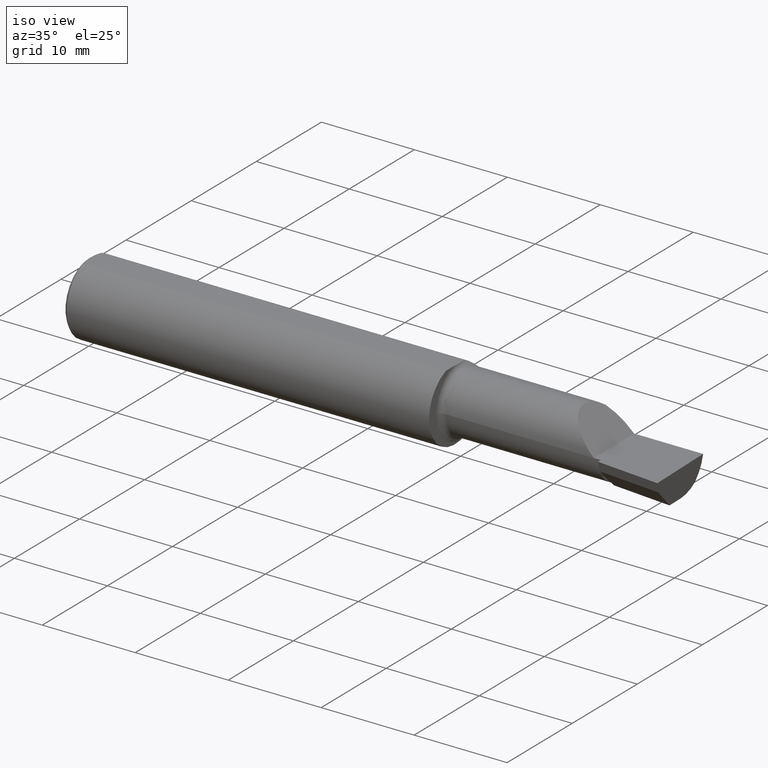
[diagram: clean part render]
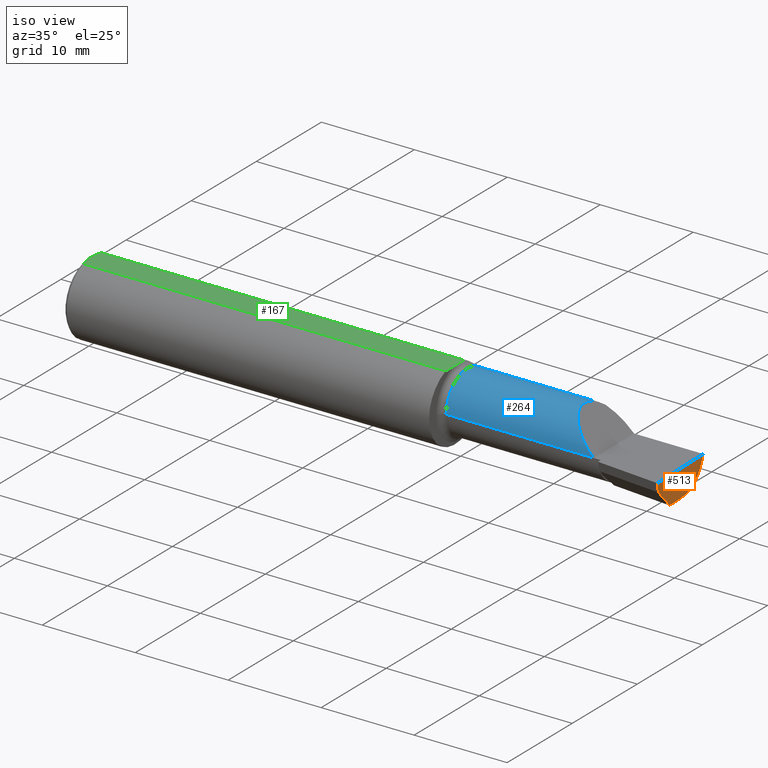
[diagram: same view with three faces highlighted in distinct colors, each labeled with its STEP entity id]
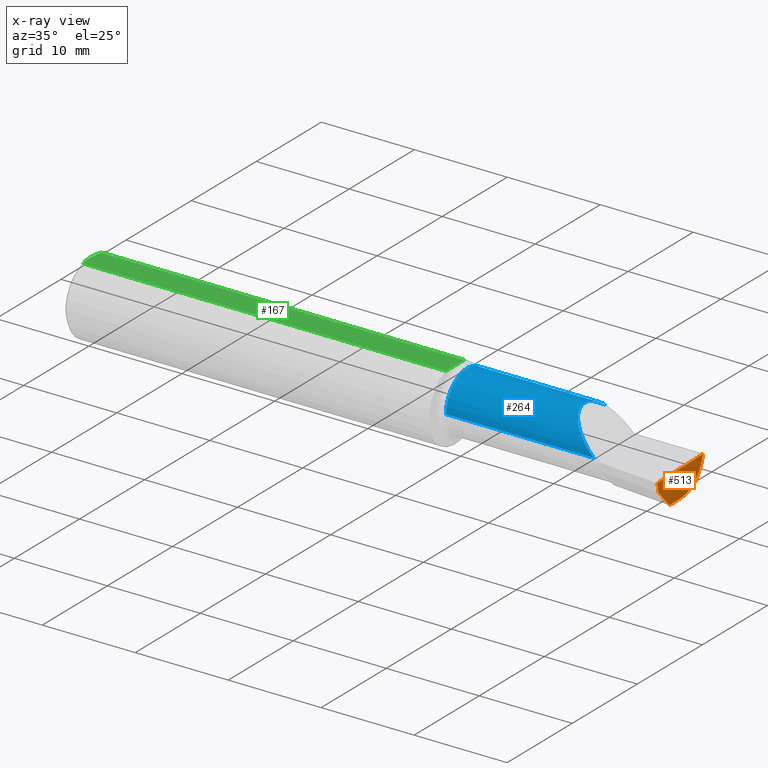
[diagram: x-ray of the same camera — body ghosted, the three highlighted faces saturated]
A machine part, iso view with three faces highlighted in distinct colors.
The next image is the same camera in x-ray (body ghosted, the three faces saturated) — at least one of them is partly hidden behind the body in this view.
Their STEP definitions:

[orange] entity #513 — the highlighted planar face has unit normal (-0.9927, -0.0266, 0.1175).
#20 = DIRECTION ( 'NONE',  ( 0.02677973311239121093, -0.9996413586354002678, 2.361772610768839557E-16 ) ) ;
#25 = VERTEX_POINT ( 'NONE', #586 ) ;
#78 = CARTESIAN_POINT ( 'NONE',  ( 2.494657007549286654, -0.1180817311663150265, -0.04199999999999994016 ) ) ;
#85 = ORIENTED_EDGE ( 'NONE', *, *, #565, .F. ) ;
#98 = VECTOR ( 'NONE', #396, 39.37007874015748854 ) ;
#146 = VECTOR ( 'NONE', #175, 39.37007874015748854 ) ;
#148 = VERTEX_POINT ( 'NONE', #195 ) ;
#161 = CARTESIAN_POINT ( 'NONE',  ( 2.480278310775617889, 0.03899999999999996525, -0.1279000000000000137 ) ) ;
#175 = DIRECTION ( 'NONE',  ( 0.1199690778467074614, -0.3102690083707258517, 0.9430485474275739355 ) ) ;
#192 =( BOUNDED_CURVE ( )  B_SPLINE_CURVE ( 3, ( #392, #193, #232, #288 ),
 .UNSPECIFIED., .F., .T. ) 
 B_SPLINE_CURVE_WITH_KNOTS ( ( 4, 4 ),
 ( 4.934903206476692006, 5.606733633295030828 ),
 .UNSPECIFIED. ) 
 CURVE ( )  GEOMETRIC_REPRESENTATION_ITEM ( )  RATIONAL_B_SPLINE_CURVE ( ( 1.000000000000000000, 0.9627393467969929119, 0.9627393467969929119, 1.000000000000000000 ) ) 
 REPRESENTATION_ITEM ( '' )  );
#193 = CARTESIAN_POINT ( 'NONE',  ( 2.488065891762460069, 0.1561000000000000443, -0.03563149886036989789 ) ) ;
#194 = ORIENTED_EDGE ( 'NONE', *, *, #429, .F. ) ;
#195 = CARTESIAN_POINT ( 'NONE',  ( 2.500000000000000000, -0.1319000000000001560, 8.537024980200822558E-17 ) ) ;
#207 = VERTEX_POINT ( 'NONE', #78 ) ;
#211 = ORIENTED_EDGE ( 'NONE', *, *, #416, .F. ) ;
#216 = CARTESIAN_POINT ( 'NONE',  ( 2.481689713451043833, 0.1221769230769229331, -0.09715971113303932538 ) ) ;
#232 = CARTESIAN_POINT ( 'NONE',  ( 2.484397555013683423, 0.1443546689866653243, -0.06927151833753060484 ) ) ;
#237 = PLANE ( 'NONE',  #473 ) ;
#248 = ORIENTED_EDGE ( 'NONE', *, *, #419, .F. ) ;
#270 = CARTESIAN_POINT ( 'NONE',  ( 2.482182401943660466, -0.03207644703550106141, -0.1278999999999999859 ) ) ;
#271 = VERTEX_POINT ( 'NONE', #270 ) ;
#282 = FACE_OUTER_BOUND ( 'NONE', #637, .T. ) ;
#288 = CARTESIAN_POINT ( 'NONE',  ( 2.481689713451043833, 0.1221769230769229331, -0.09715971113303932538 ) ) ;
#307 = CARTESIAN_POINT ( 'NONE',  ( 2.503161552210378282, -0.2499153041001321018, 6.798346390156494500E-17 ) ) ;
#333 = CARTESIAN_POINT ( 'NONE',  ( 2.480292454266014079, 0.03847204783946026746, -0.1279000000000000137 ) ) ;
#341 = LINE ( 'NONE', #617, #146 ) ;
#356 = CARTESIAN_POINT ( 'NONE',  ( 2.480278310775617889, 0.03899999999999996525, -0.1279000000000000137 ) ) ;
#383 = ORIENTED_EDGE ( 'NONE', *, *, #606, .F. ) ;
#392 = CARTESIAN_POINT ( 'NONE',  ( 2.492284669827090404, 0.1560999999999998500, 6.904452464043948710E-17 ) ) ;
#396 = DIRECTION ( 'NONE',  ( 0.1020886612874973703, -0.7038430390621320809, 0.7029814233678642887 ) ) ;
#416 = EDGE_CURVE ( 'NONE', #632, #271, #672, .T. ) ;
#419 = EDGE_CURVE ( 'NONE', #207, #148, #341, .T. ) ;
#429 = EDGE_CURVE ( 'NONE', #271, #207, #682, .T. ) ;
#456 = CARTESIAN_POINT ( 'NONE',  ( 2.447263151235541834, -0.1332809629855526701, -0.4457241239726061344 ) ) ;
#461 = VECTOR ( 'NONE', #20, 39.37007874015748143 ) ;
#473 = AXIS2_PLACEMENT_3D ( 'NONE', #456, #676, #623 ) ;
#475 = EDGE_CURVE ( 'NONE', #25, #698, #192, .T. ) ;
#485 = LINE ( 'NONE', #307, #653 ) ;
#508 = CARTESIAN_POINT ( 'NONE',  ( 2.481689713451043833, 0.1221769230769229331, -0.09715971113303932538 ) ) ;
#513 = ADVANCED_FACE ( 'NONE', ( #282 ), #237, .F. ) ;
#531 = CARTESIAN_POINT ( 'NONE',  ( 2.479452310584073782, 0.06983316589608457026, -0.1279000000000000137 ) ) ;
#539 = CARTESIAN_POINT ( 'NONE',  ( 2.479943065675275005, 0.09875439382140567546, -0.1172113754642092748 ) ) ;
#564 = CARTESIAN_POINT ( 'NONE',  ( 2.489852269752854230, -0.08495580699522395363, -0.07508537277742946547 ) ) ;
#565 = EDGE_CURVE ( 'NONE', #148, #25, #485, .T. ) ;
#577 =( BOUNDED_CURVE ( )  B_SPLINE_CURVE ( 3, ( #216, #539, #531, #356 ),
 .UNSPECIFIED., .F., .T. ) 
 B_SPLINE_CURVE_WITH_KNOTS ( ( 4, 4 ),
 ( 5.797683689972068954, 6.505699533271590340 ),
 .UNSPECIFIED. ) 
 CURVE ( )  GEOMETRIC_REPRESENTATION_ITEM ( )  RATIONAL_B_SPLINE_CURVE ( ( 1.000000000000000000, 0.9586605761426441052, 0.9586605761426441052, 1.000000000000000000 ) ) 
 REPRESENTATION_ITEM ( '' )  );
#586 = CARTESIAN_POINT ( 'NONE',  ( 2.492284669827090404, 0.1560999999999998500, 6.904452464043948710E-17 ) ) ;
#606 = EDGE_CURVE ( 'NONE', #698, #632, #577, .T. ) ;
#615 = ORIENTED_EDGE ( 'NONE', *, *, #475, .F. ) ;
#617 = CARTESIAN_POINT ( 'NONE',  ( 2.489676096502775771, -0.1051998922881460657, -0.08115376371634881736 ) ) ;
#623 = DIRECTION ( 'NONE',  ( 0.1175789623991730093, 0.000000000000000000, 0.9930635365378863710 ) ) ;
#632 = VERTEX_POINT ( 'NONE', #161 ) ;
#637 = EDGE_LOOP ( 'NONE', ( #85, #248, #194, #211, #383, #615 ) ) ;
#640 = DIRECTION ( 'NONE',  ( -0.02677973311239118664, 0.9996413586354002678, 2.612414329932813452E-18 ) ) ;
#653 = VECTOR ( 'NONE', #640, 39.37007874015748854 ) ;
#672 = LINE ( 'NONE', #333, #461 ) ;
#676 = DIRECTION ( 'NONE',  ( -0.9927123040216839778, -0.02659410830638095011, 0.1175373763844856645 ) ) ;
#682 = LINE ( 'NONE', #564, #98 ) ;
#698 = VERTEX_POINT ( 'NONE', #508 ) ;

[blue] entity #264 — the highlighted cylindrical surface (partial cylindrical patch) has radius 3.2487 mm, axis along (-1, 0, -0).
#9 = LINE ( 'NONE', #604, #90 ) ;
#11 = VERTEX_POINT ( 'NONE', #381 ) ;
#14 = DIRECTION ( 'NONE',  ( -1.000000000000000000, 6.829619984160658046E-18, -0.000000000000000000 ) ) ;
#40 = VERTEX_POINT ( 'NONE', #656 ) ;
#41 = EDGE_CURVE ( 'NONE', #650, #40, #9, .T. ) ;
#42 = DIRECTION ( 'NONE',  ( 0.000000000000000000, -1.000000000000000000, 0.000000000000000000 ) ) ;
#56 = DIRECTION ( 'NONE',  ( -1.000000000000000000, 6.829619984160658046E-18, -0.000000000000000000 ) ) ;
#90 = VECTOR ( 'NONE', #107, 39.37007874015748143 ) ;
#107 = DIRECTION ( 'NONE',  ( 1.000000000000000000, -6.829619984160658046E-18, 0.000000000000000000 ) ) ;
#153 = CARTESIAN_POINT ( 'NONE',  ( 2.020546539569985978, 0.02604885517094871969, 0.1794534604300119796 ) ) ;
#202 = CARTESIAN_POINT ( 'NONE',  ( 2.200000000000000178, -0.08890000000000010394, 9.797174393178826150E-17 ) ) ;
#255 =( BOUNDED_CURVE ( )  B_SPLINE_CURVE ( 3, ( #428, #153, #695, #202 ),
 .UNSPECIFIED., .F., .T. ) 
 B_SPLINE_CURVE_WITH_KNOTS ( ( 4, 4 ),
 ( 5.575169463880055076, 7.853981633974482790 ),
 .UNSPECIFIED. ) 
 CURVE ( )  GEOMETRIC_REPRESENTATION_ITEM ( )  RATIONAL_B_SPLINE_CURVE ( ( 1.000000000000000000, 0.6120893875309916243, 0.6120893875309916243, 1.000000000000000000 ) ) 
 REPRESENTATION_ITEM ( '' )  );
#263 = VECTOR ( 'NONE', #14, 39.37007874015748143 ) ;
#264 = ADVANCED_FACE ( 'NONE', ( #432 ), #273, .T. ) ;
#265 = CARTESIAN_POINT ( 'NONE',  ( 1.574999999999999956, -0.08890000000000007618, 0.000000000000000000 ) ) ;
#273 = CYLINDRICAL_SURFACE ( 'NONE', #556, 0.1279000000000000137 ) ;
#326 = CARTESIAN_POINT ( 'NONE',  ( -8.735083959741483980E-19, -0.08890000000000002067, 0.000000000000000000 ) ) ;
#337 = DIRECTION ( 'NONE',  ( -1.000000000000000000, 6.829619984160658046E-18, -0.000000000000000000 ) ) ;
#359 = ORIENTED_EDGE ( 'NONE', *, *, #41, .F. ) ;
#381 = CARTESIAN_POINT ( 'NONE',  ( 2.200000000000000178, -0.08890000000000010394, 9.797174393178826150E-17 ) ) ;
#428 = CARTESIAN_POINT ( 'NONE',  ( 2.102840288866960616, 0.1221769230769238490, 0.09715971113303838169 ) ) ;
#432 = FACE_OUTER_BOUND ( 'NONE', #519, .T. ) ;
#442 = CARTESIAN_POINT ( 'NONE',  ( 0.000000000000000000, 0.03899999999999999994, 0.000000000000000000 ) ) ;
#454 = ORIENTED_EDGE ( 'NONE', *, *, #671, .F. ) ;
#465 = CARTESIAN_POINT ( 'NONE',  ( 1.574999999999999956, 0.03899999999999998607, 0.000000000000000000 ) ) ;
#476 = CARTESIAN_POINT ( 'NONE',  ( 1.574999999999999956, 0.1221769230769225584, 0.09715971113303970008 ) ) ;
#519 = EDGE_LOOP ( 'NONE', ( #454, #652, #359, #523 ) ) ;
#520 = EDGE_CURVE ( 'NONE', #618, #650, #592, .T. ) ;
#523 = ORIENTED_EDGE ( 'NONE', *, *, #520, .F. ) ;
#548 = AXIS2_PLACEMENT_3D ( 'NONE', #465, #337, #42 ) ;
#556 = AXIS2_PLACEMENT_3D ( 'NONE', #442, #56, #657 ) ;
#592 = CIRCLE ( 'NONE', #548, 0.1279000000000000414 ) ;
#604 = CARTESIAN_POINT ( 'NONE',  ( 1.902500000000000080, 0.1221769230769229331, 0.09715971113303932538 ) ) ;
#618 = VERTEX_POINT ( 'NONE', #265 ) ;
#646 = EDGE_CURVE ( 'NONE', #40, #11, #255, .T. ) ;
#650 = VERTEX_POINT ( 'NONE', #476 ) ;
#652 = ORIENTED_EDGE ( 'NONE', *, *, #646, .F. ) ;
#656 = CARTESIAN_POINT ( 'NONE',  ( 2.102840288866960616, 0.1221769230769238490, 0.09715971113303838169 ) ) ;
#657 = DIRECTION ( 'NONE',  ( -6.829619984160658816E-18, -1.000000000000000000, 0.000000000000000000 ) ) ;
#670 = LINE ( 'NONE', #326, #263 ) ;
#671 = EDGE_CURVE ( 'NONE', #11, #618, #670, .T. ) ;
#695 = CARTESIAN_POINT ( 'NONE',  ( 2.073458044061706307, -0.08890000000000002067, 0.1265419559382931769 ) ) ;

[green] entity #167 — the highlighted planar face has unit normal (0, -0, -1).
#8 = B_SPLINE_CURVE_WITH_KNOTS ( 'NONE', 3,
 ( #557, #561, #76, #68, #405, #346 ),
 .UNSPECIFIED., .F., .F.,
 ( 4, 2, 4 ),
 ( 0.002884734412378666280, 0.003593604306281239329, 0.004302474200183812811 ),
 .UNSPECIFIED. ) ;
#48 = LINE ( 'NONE', #535, #135 ) ;
#55 = CARTESIAN_POINT ( 'NONE',  ( 0.01499999999999999944, -0.05497272050753897882, 0.1461000000000000076 ) ) ;
#66 = VECTOR ( 'NONE', #453, 39.37007874015748143 ) ;
#68 = CARTESIAN_POINT ( 'NONE',  ( 0.009371209226504017067, 0.03711161584255317364, 0.1460999999999999799 ) ) ;
#72 = FACE_OUTER_BOUND ( 'NONE', #462, .T. ) ;
#76 = CARTESIAN_POINT ( 'NONE',  ( 0.005929349363809115203, 0.01879672308419498561, 0.1461000000000000076 ) ) ;
#80 = AXIS2_PLACEMENT_3D ( 'NONE', #636, #411, #138 ) ;
#82 = VERTEX_POINT ( 'NONE', #110 ) ;
#84 = EDGE_CURVE ( 'NONE', #184, #176, #620, .T. ) ;
#104 = EDGE_CURVE ( 'NONE', #82, #402, #48, .T. ) ;
#110 = CARTESIAN_POINT ( 'NONE',  ( 1.550000000000000044, -0.05497272050753900657, 0.1461000000000000076 ) ) ;
#118 = ORIENTED_EDGE ( 'NONE', *, *, #469, .F. ) ;
#128 = CARTESIAN_POINT ( 'NONE',  ( 0.000000000000000000, 0.05497272050753903433, 0.1460999999999999521 ) ) ;
#135 = VECTOR ( 'NONE', #599, 39.37007874015748143 ) ;
#138 = DIRECTION ( 'NONE',  ( 0.000000000000000000, 1.000000000000000000, -1.656870447394628111E-16 ) ) ;
#167 = ADVANCED_FACE ( 'NONE', ( #72 ), #414, .F. ) ;
#176 = VERTEX_POINT ( 'NONE', #293 ) ;
#182 = EDGE_CURVE ( 'NONE', #402, #443, #579, .T. ) ;
#184 = VERTEX_POINT ( 'NONE', #678 ) ;
#214 = CARTESIAN_POINT ( 'NONE',  ( 0.005000000000000139749, -0.009384304010803560733, 0.1460999999999999799 ) ) ;
#215 = CARTESIAN_POINT ( 'NONE',  ( 0.01499999999999999424, 0.05497272050753903433, 0.1460999999999999521 ) ) ;
#218 = VECTOR ( 'NONE', #314, 39.37007874015748143 ) ;
#233 = VERTEX_POINT ( 'NONE', #215 ) ;
#239 = CARTESIAN_POINT ( 'NONE',  ( 1.550000000000000044, -0.006091019061449783230, 0.1460999999999999799 ) ) ;
#242 = CARTESIAN_POINT ( 'NONE',  ( 1.550497536416570954, 0.01428560316177553656, 0.1461000000000000076 ) ) ;
#261 = CARTESIAN_POINT ( 'NONE',  ( 0.009356849677356088302, -0.03706298561014170767, 0.1461000000000000354 ) ) ;
#293 = CARTESIAN_POINT ( 'NONE',  ( 0.005000000000000177913, 2.057148876208899831E-17, 0.1460999999999999799 ) ) ;
#314 = DIRECTION ( 'NONE',  ( -1.000000000000000000, -0.000000000000000000, -0.000000000000000000 ) ) ;
#346 = CARTESIAN_POINT ( 'NONE',  ( 0.01499999999999999424, 0.05497272050753903433, 0.1460999999999999521 ) ) ;
#353 = EDGE_CURVE ( 'NONE', #233, #443, #409, .T. ) ;
#374 = LINE ( 'NONE', #697, #218 ) ;
#402 = VERTEX_POINT ( 'NONE', #631 ) ;
#405 = CARTESIAN_POINT ( 'NONE',  ( 0.01187749995209277584, 0.04610609988228757394, 0.1460999999999999799 ) ) ;
#409 = LINE ( 'NONE', #128, #66 ) ;
#411 = DIRECTION ( 'NONE',  ( 0.000000000000000000, -1.656870447394628111E-16, -1.000000000000000000 ) ) ;
#414 = PLANE ( 'NONE',  #80 ) ;
#443 = VERTEX_POINT ( 'NONE', #685 ) ;
#453 = DIRECTION ( 'NONE',  ( 1.000000000000000000, 0.000000000000000000, 0.000000000000000000 ) ) ;
#458 = CARTESIAN_POINT ( 'NONE',  ( 1.550000000000000044, 0.004133650856200917455, 0.1460999999999999521 ) ) ;
#462 = EDGE_LOOP ( 'NONE', ( #502, #574, #515, #118, #691, #468 ) ) ;
#468 = ORIENTED_EDGE ( 'NONE', *, *, #559, .F. ) ;
#469 = EDGE_CURVE ( 'NONE', #176, #233, #8, .T. ) ;
#494 = CARTESIAN_POINT ( 'NONE',  ( 0.005000000000000177913, 2.057148876208899831E-17, 0.1460999999999999799 ) ) ;
#502 = ORIENTED_EDGE ( 'NONE', *, *, #104, .T. ) ;
#515 = ORIENTED_EDGE ( 'NONE', *, *, #353, .F. ) ;
#522 = CARTESIAN_POINT ( 'NONE',  ( 1.551002510363909792, 0.03462329751451417859, 0.1460999999999999799 ) ) ;
#535 = CARTESIAN_POINT ( 'NONE',  ( 1.550000000000000044, 0.2061000000000000332, 0.1460999999999999521 ) ) ;
#557 = CARTESIAN_POINT ( 'NONE',  ( 0.005000000000000177913, 2.057148876208899831E-17, 0.1460999999999999799 ) ) ;
#559 = EDGE_CURVE ( 'NONE', #82, #184, #374, .T. ) ;
#561 = CARTESIAN_POINT ( 'NONE',  ( 0.005000000000000138882, 0.009391435229055633896, 0.1460999999999999521 ) ) ;
#574 = ORIENTED_EDGE ( 'NONE', *, *, #182, .T. ) ;
#579 = B_SPLINE_CURVE_WITH_KNOTS ( 'NONE', 3,
 ( #239, #458, #242, #522, #692, #625 ),
 .UNSPECIFIED., .F., .F.,
 ( 4, 2, 4 ),
 ( 0.01118866809925240027, 0.01196373645042578260, 0.01273880480159916319 ),
 .UNSPECIFIED. ) ;
#588 = CARTESIAN_POINT ( 'NONE',  ( 0.01190375560897322625, -0.04618065518901639382, 0.1461000000000000076 ) ) ;
#599 = DIRECTION ( 'NONE',  ( 6.829619984160658046E-18, 1.000000000000000000, -1.656870447394628111E-16 ) ) ;
#620 = B_SPLINE_CURVE_WITH_KNOTS ( 'NONE', 3,
 ( #55, #588, #261, #648, #214, #494 ),
 .UNSPECIFIED., .F., .F.,
 ( 4, 2, 4 ),
 ( 0.001468071159906499112, 0.002176402786142582479, 0.002884734412378666280 ),
 .UNSPECIFIED. ) ;
#625 = CARTESIAN_POINT ( 'NONE',  ( 1.550713348720345941, 0.05497272050753925637, 0.1460999999999999521 ) ) ;
#631 = CARTESIAN_POINT ( 'NONE',  ( 1.550000000000000044, -0.006091019061449783230, 0.1460999999999999799 ) ) ;
#636 = CARTESIAN_POINT ( 'NONE',  ( 2.500000000000000000, 0.2061000000000000332, 0.1460999999999999521 ) ) ;
#648 = CARTESIAN_POINT ( 'NONE',  ( 0.005910707775482461519, -0.01866948012536269463, 0.1460999999999999799 ) ) ;
#678 = CARTESIAN_POINT ( 'NONE',  ( 0.01499999999999999944, -0.05497272050753897882, 0.1461000000000000076 ) ) ;
#685 = CARTESIAN_POINT ( 'NONE',  ( 1.550713348720345941, 0.05497272050753925637, 0.1460999999999999521 ) ) ;
#691 = ORIENTED_EDGE ( 'NONE', *, *, #84, .F. ) ;
#692 = CARTESIAN_POINT ( 'NONE',  ( 1.550983344077626391, 0.04479712784712941431, 0.1460999999999999799 ) ) ;
#697 = CARTESIAN_POINT ( 'NONE',  ( 0.000000000000000000, -0.05497272050753897882, 0.1461000000000000076 ) ) ;